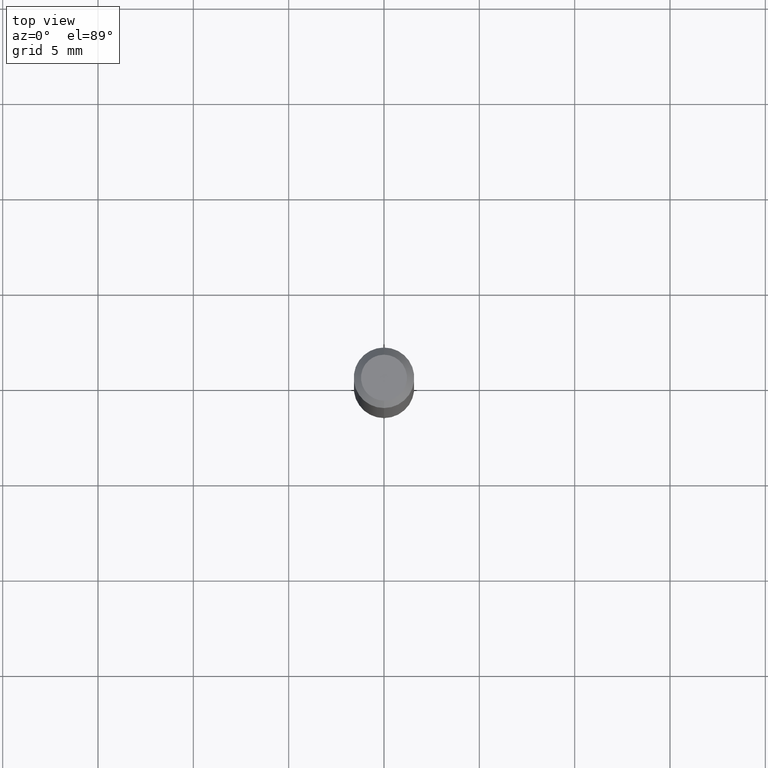
[diagram: clean part render]
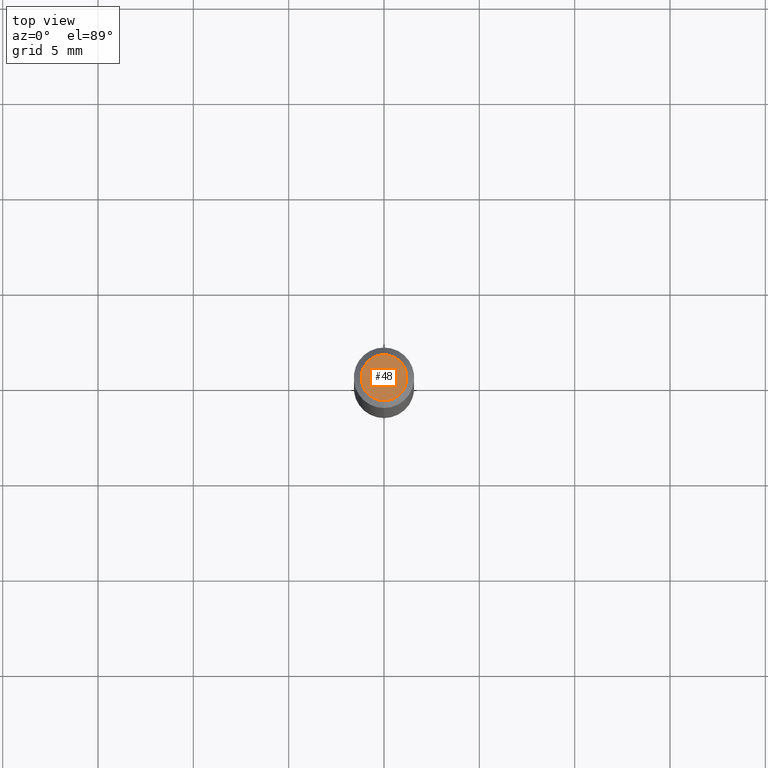
[diagram: same view with one face highlighted and labeled with its STEP entity id]
A machine part, top view. The second image highlights one B-rep face of the part: STEP entity #48.
In plain terms, the highlighted planar face has unit normal (0, -0, -1).
Its self-contained STEP definition (entity closure, byte-faithful):
#4 = EDGE_LOOP ( 'NONE', ( #438, #356 ) ) ;
#5 = CIRCLE ( 'NONE', #409, 0.04749999999999999362 ) ;
#48 = ADVANCED_FACE ( 'NONE', ( #247 ), #50, .F. ) ;
#50 = PLANE ( 'NONE',  #129 ) ;
#62 = CARTESIAN_POINT ( 'NONE',  ( 3.840629472727447874E-16, 0.04749999999999999362, -1.747056831868805136E-16 ) ) ;
#77 = AXIS2_PLACEMENT_3D ( 'NONE', #486, #219, #450 ) ;
#85 = DIRECTION ( 'NONE',  ( 6.982962677686265922E-15, 1.000000000000000000, -3.491469267599920324E-15 ) ) ;
#129 = AXIS2_PLACEMENT_3D ( 'NONE', #211, #372, #85 ) ;
#157 = EDGE_CURVE ( 'NONE', #159, #323, #5, .T. ) ;
#159 = VERTEX_POINT ( 'NONE', #62 ) ;
#211 = CARTESIAN_POINT ( 'NONE',  ( 3.316907271900976096E-16, 0.04749999999999999362, -1.702752366989383478E-16 ) ) ;
#219 = DIRECTION ( 'NONE',  ( -2.445477235489228020E-29, 3.491469267599920324E-15, 1.000000000000000000 ) ) ;
#247 = FACE_OUTER_BOUND ( 'NONE', #4, .T. ) ;
#264 = DIRECTION ( 'NONE',  ( -2.445477235489228020E-29, 3.491469267599920324E-15, 1.000000000000000000 ) ) ;
#275 = EDGE_CURVE ( 'NONE', #323, #159, #478, .T. ) ;
#294 = CARTESIAN_POINT ( 'NONE',  ( 2.166911205863144618E-46, -3.093753550879202143E-32, -8.860892975884294793E-18 ) ) ;
#317 = CARTESIAN_POINT ( 'NONE',  ( -3.773273898774340269E-16, -0.04749999999999999362, 1.569838972351119241E-16 ) ) ;
#323 = VERTEX_POINT ( 'NONE', #317 ) ;
#356 = ORIENTED_EDGE ( 'NONE', *, *, #275, .T. ) ;
#372 = DIRECTION ( 'NONE',  ( 2.445477235489227739E-29, -3.491469267599920324E-15, -1.000000000000000000 ) ) ;
#409 = AXIS2_PLACEMENT_3D ( 'NONE', #294, #264, #454 ) ;
#438 = ORIENTED_EDGE ( 'NONE', *, *, #157, .T. ) ;
#450 = DIRECTION ( 'NONE',  ( -6.982962677686266711E-15, -1.000000000000000000, 3.491469267599920718E-15 ) ) ;
#454 = DIRECTION ( 'NONE',  ( -6.982962677686266711E-15, -1.000000000000000000, 3.491469267599920718E-15 ) ) ;
#478 = CIRCLE ( 'NONE', #77, 0.04749999999999999362 ) ;
#486 = CARTESIAN_POINT ( 'NONE',  ( 2.166911205863144618E-46, -3.093753550879202143E-32, -8.860892975884294793E-18 ) ) ;